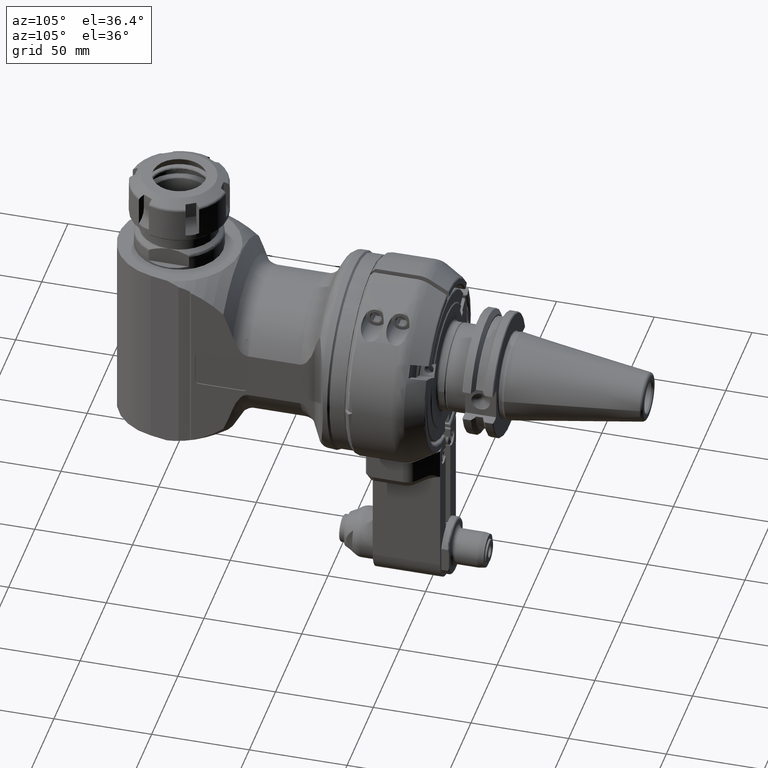
[diagram: clean part render]
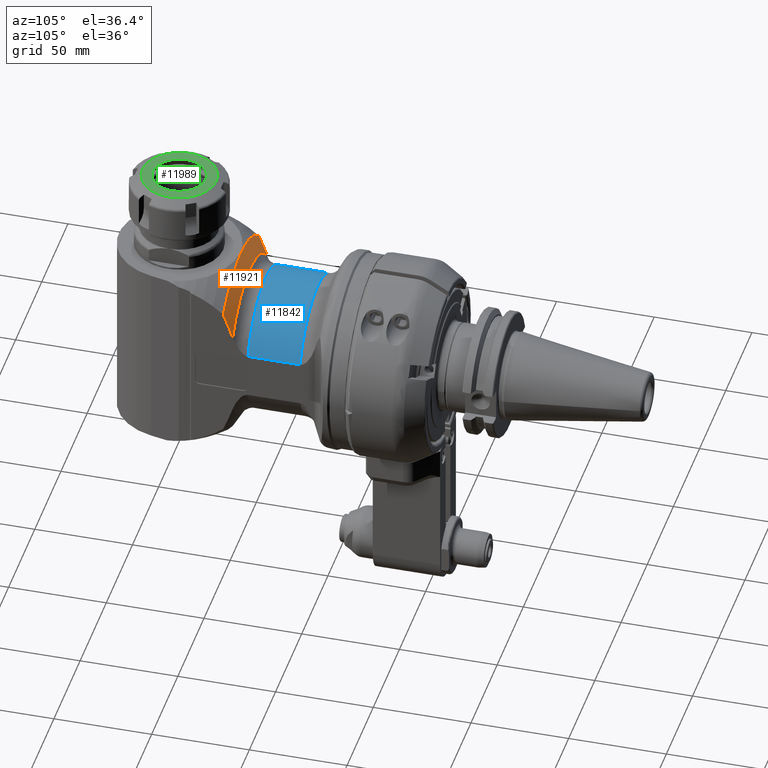
[diagram: same view with three faces highlighted in distinct colors, each labeled with its STEP entity id]
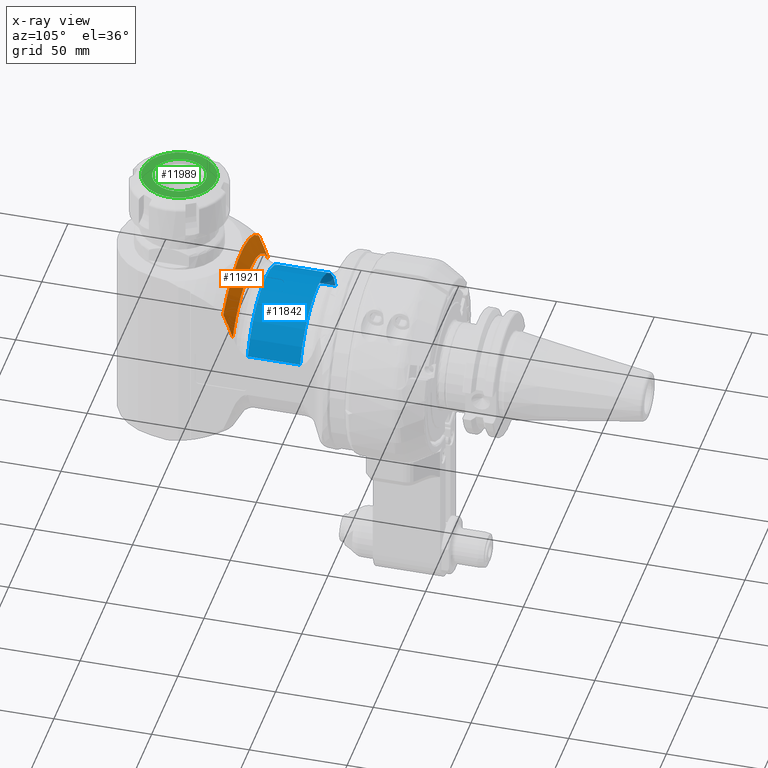
[diagram: x-ray of the same camera — body ghosted, the three highlighted faces saturated]
A machine part, auxiliary view with three faces highlighted in distinct colors.
The next image is the same camera in x-ray (body ghosted, the three faces saturated) — at least one of them is partly hidden behind the body in this view.
Their STEP definitions:

[orange] entity #11921 — the highlighted conical surface has half-angle 60 deg.
#83=CONICAL_SURFACE('',#12697,44.66746821203,1.0471975511966);
#234=(
BOUNDED_CURVE()
B_SPLINE_CURVE(2,(#17357,#17358,#17359),.UNSPECIFIED.,.F.,.F.)
B_SPLINE_CURVE_WITH_KNOTS((3,3),(12.3175529035878,13.9654344153438),
 .UNSPECIFIED.)
CURVE()
GEOMETRIC_REPRESENTATION_ITEM()
RATIONAL_B_SPLINE_CURVE((1.61717422063226,1.55028507239193,1.45445248874682))
REPRESENTATION_ITEM('')
);
#259=(
BOUNDED_CURVE()
B_SPLINE_CURVE(2,(#17607,#17608,#17609),.UNSPECIFIED.,.F.,.F.)
B_SPLINE_CURVE_WITH_KNOTS((3,3),(2.5215742486305,4.06301752668661),
 .UNSPECIFIED.)
CURVE()
GEOMETRIC_REPRESENTATION_ITEM()
RATIONAL_B_SPLINE_CURVE((1.36765630309663,1.4577699631041,1.52066742170751))
REPRESENTATION_ITEM('')
);
#2759=FACE_OUTER_BOUND('',#3433,.T.);
#3433=EDGE_LOOP('',(#8312,#8313,#8314,#8315));
#4162=CIRCLE('',#12690,48.83493642406);
#4166=CIRCLE('',#12698,40.5);
#4713=VERTEX_POINT('',#17352);
#4714=VERTEX_POINT('',#17356);
#4769=VERTEX_POINT('',#17595);
#4770=VERTEX_POINT('',#17606);
#6008=EDGE_CURVE('',#4714,#4713,#234,.T.);
#6076=EDGE_CURVE('',#4770,#4769,#259,.T.);
#6224=EDGE_CURVE('',#4713,#4770,#4162,.T.);
#6228=EDGE_CURVE('',#4714,#4769,#4166,.T.);
#8312=ORIENTED_EDGE('',*,*,#6228,.F.);
#8313=ORIENTED_EDGE('',*,*,#6008,.T.);
#8314=ORIENTED_EDGE('',*,*,#6224,.T.);
#8315=ORIENTED_EDGE('',*,*,#6076,.T.);
#11921=ADVANCED_FACE('',(#2759),#83,.T.);
#12690=AXIS2_PLACEMENT_3D('',#22413,#14143,#14144);
#12697=AXIS2_PLACEMENT_3D('',#22420,#14157,#14158);
#12698=AXIS2_PLACEMENT_3D('',#22421,#14159,#14160);
#14143=DIRECTION('center_axis',(-1.,0.,0.));
#14144=DIRECTION('ref_axis',(0.,-1.,0.));
#14157=DIRECTION('center_axis',(1.,0.,0.));
#14158=DIRECTION('ref_axis',(0.,-1.,0.));
#14159=DIRECTION('center_axis',(-1.,0.,0.));
#14160=DIRECTION('ref_axis',(0.,-1.,0.));
#17352=CARTESIAN_POINT('',(246.4733509227,-35.05497133849,-34.));
#17356=CARTESIAN_POINT('',(241.6611731346,-22.00568108462,-34.));
#17357=CARTESIAN_POINT('Ctrl Pts',(241.661173134573,-22.0056810847525,-34.));
#17358=CARTESIAN_POINT('Ctrl Pts',(243.517009779102,-27.9215777812984,-34.));
#17359=CARTESIAN_POINT('Ctrl Pts',(246.473350922663,-35.0549713385052,-34.));
#17595=CARTESIAN_POINT('',(241.6611731346,-22.00568108465,34.));
#17606=CARTESIAN_POINT('',(246.4733509227,-35.05497133849,34.));
#17607=CARTESIAN_POINT('Ctrl Pts',(246.473350922763,-35.0549713387466,34.));
#17608=CARTESIAN_POINT('Ctrl Pts',(243.517009779118,-27.921577781361,34.));
#17609=CARTESIAN_POINT('Ctrl Pts',(241.661173134554,-22.0056810846926,34.));
#22413=CARTESIAN_POINT('Origin',(246.4733509227,0.,0.));
#22420=CARTESIAN_POINT('Origin',(244.0672620286,0.,0.));
#22421=CARTESIAN_POINT('Origin',(241.6611731346,0.,0.));

[blue] entity #11842 — the highlighted cylindrical surface (partial cylindrical patch) has radius 36 mm, axis along (-0, 1, 0).
#743=LINE('',#17300,#1631);
#744=LINE('',#17303,#1632);
#1631=VECTOR('',#13882,26.67897826015);
#1632=VECTOR('',#13885,26.67897826015);
#2507=CYLINDRICAL_SURFACE('',#12574,36.);
#2680=FACE_OUTER_BOUND('',#3348,.T.);
#3348=EDGE_LOOP('',(#7870,#7871,#7872,#7873));
#4106=CIRCLE('',#12575,36.);
#4107=CIRCLE('',#12576,36.);
#4701=VERTEX_POINT('',#17296);
#4702=VERTEX_POINT('',#17297);
#4703=VERTEX_POINT('',#17299);
#4704=VERTEX_POINT('',#17301);
#5995=EDGE_CURVE('',#4701,#4702,#4106,.T.);
#5996=EDGE_CURVE('',#4701,#4703,#743,.T.);
#5997=EDGE_CURVE('',#4704,#4703,#4107,.T.);
#5998=EDGE_CURVE('',#4704,#4702,#744,.T.);
#7870=ORIENTED_EDGE('',*,*,#5995,.F.);
#7871=ORIENTED_EDGE('',*,*,#5996,.T.);
#7872=ORIENTED_EDGE('',*,*,#5997,.F.);
#7873=ORIENTED_EDGE('',*,*,#5998,.T.);
#11842=ADVANCED_FACE('',(#2680),#2507,.T.);
#12574=AXIS2_PLACEMENT_3D('',#17295,#13878,#13879);
#12575=AXIS2_PLACEMENT_3D('',#17298,#13880,#13881);
#12576=AXIS2_PLACEMENT_3D('',#17302,#13883,#13884);
#13878=DIRECTION('center_axis',(-1.,0.,0.));
#13879=DIRECTION('ref_axis',(0.,-1.,0.));
#13880=DIRECTION('center_axis',(-1.,0.,0.));
#13881=DIRECTION('ref_axis',(0.,-1.,0.));
#13882=DIRECTION('',(1.,0.,0.));
#13883=DIRECTION('center_axis',(1.,0.,0.));
#13884=DIRECTION('ref_axis',(0.,-1.,0.));
#13885=DIRECTION('',(-1.,0.,0.));
#17295=CARTESIAN_POINT('Origin',(217.7095440971,0.,0.));
#17296=CARTESIAN_POINT('',(207.1879662404,-11.8321595662,-34.));
#17297=CARTESIAN_POINT('',(207.1879662404,-11.8321595662,34.));
#17298=CARTESIAN_POINT('Origin',(207.1879662404,0.,0.));
#17299=CARTESIAN_POINT('',(233.8669445005,-11.8321595662,-34.));
#17300=CARTESIAN_POINT('',(207.1879662404,-11.8321595662,-34.));
#17301=CARTESIAN_POINT('',(233.8669445005,-11.8321595662,34.));
#17302=CARTESIAN_POINT('Origin',(233.8669445005,0.,0.));
#17303=CARTESIAN_POINT('',(233.8669445005,-11.8321595662,34.));

[green] entity #11989 — the highlighted planar face has unit normal (0, -0, 1).
#637=FACE_BOUND('',#3517,.T.);
#2827=FACE_OUTER_BOUND('',#3516,.T.);
#3516=EDGE_LOOP('',(#9080));
#3517=EDGE_LOOP('',(#9081));
#4194=CIRCLE('',#12770,18.93782217351);
#4195=CIRCLE('',#12809,13.5);
#5173=VERTEX_POINT('',#23313);
#5184=VERTEX_POINT('',#23467);
#6569=EDGE_CURVE('',#5173,#5173,#4194,.T.);
#6606=EDGE_CURVE('',#5184,#5184,#4195,.T.);
#9080=ORIENTED_EDGE('',*,*,#6569,.T.);
#9081=ORIENTED_EDGE('',*,*,#6606,.T.);
#11600=PLANE('',#12808);
#11989=ADVANCED_FACE('',(#2827,#637),#11600,.T.);
#12770=AXIS2_PLACEMENT_3D('',#23315,#14567,#14568);
#12808=AXIS2_PLACEMENT_3D('',#23466,#14658,#14659);
#12809=AXIS2_PLACEMENT_3D('',#23468,#14660,#14661);
#14567=DIRECTION('center_axis',(0.,-1.,0.));
#14568=DIRECTION('ref_axis',(-1.,0.,0.));
#14658=DIRECTION('center_axis',(0.,-1.,0.));
#14659=DIRECTION('ref_axis',(-1.,0.,0.));
#14660=DIRECTION('center_axis',(0.,1.,0.));
#14661=DIRECTION('ref_axis',(0.,0.,-1.));
#23313=CARTESIAN_POINT('',(259.1252748265,-90.5,-1.330713956505E-14));
#23315=CARTESIAN_POINT('Origin',(278.063097,-90.5,-1.452709535983E-14));
#23466=CARTESIAN_POINT('Origin',(294.4070080868,-90.5,-1.557471973214E-14));
#23467=CARTESIAN_POINT('',(278.063097,-90.5,13.5));
#23468=CARTESIAN_POINT('Origin',(278.063097,-90.5,-6.486328912691E-14));